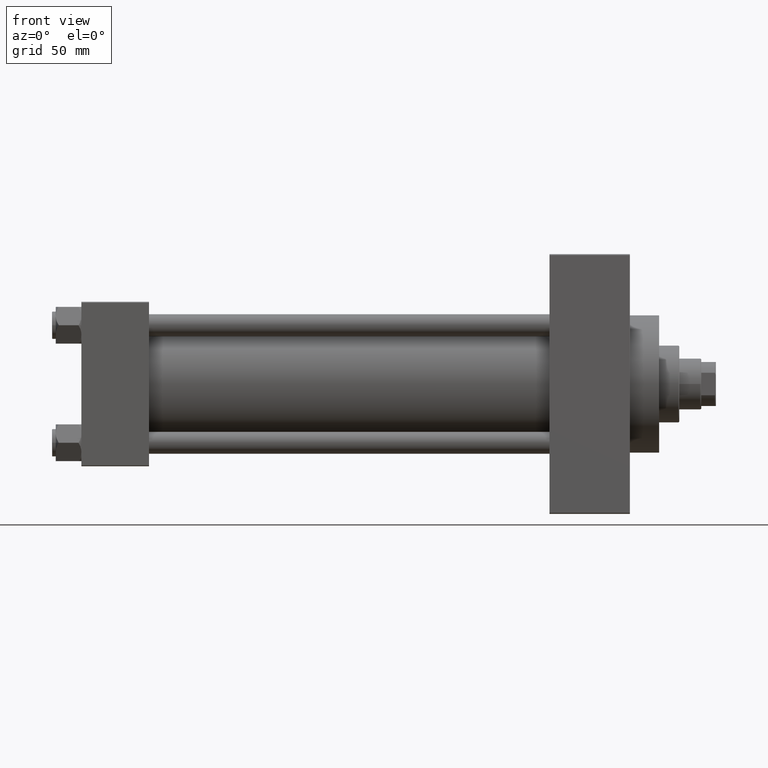
[diagram: clean part render]
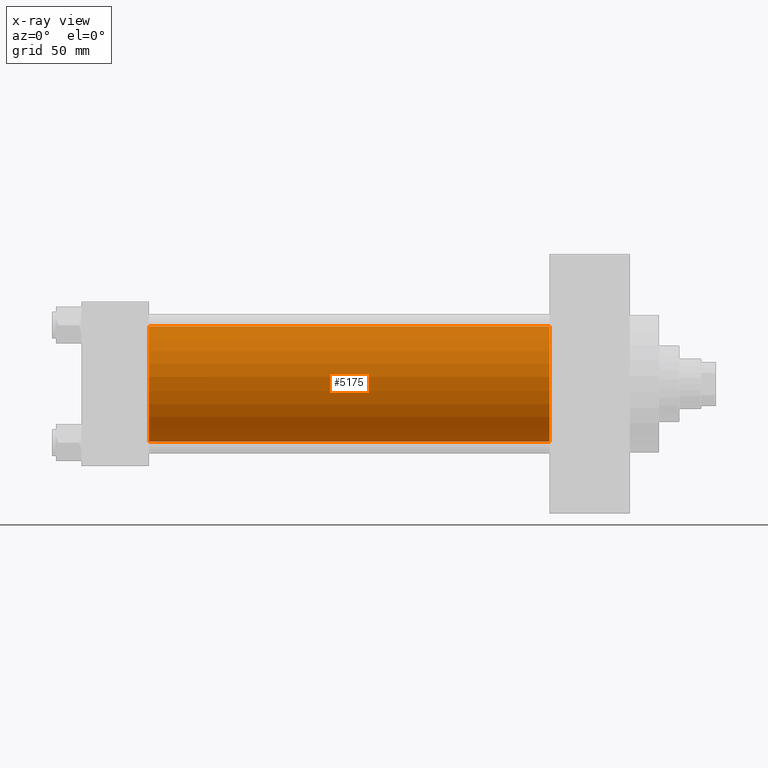
[diagram: x-ray — body ghosted, one internal face saturated and labeled with its STEP entity id]
A machine part, front view, then the same camera in x-ray: the body is ghosted and one INTERNAL B-rep face — a face not visible from any outside direction — is saturated and labeled: STEP entity #5175.
In plain terms, the highlighted cylindrical surface (partial cylindrical patch) has radius 31.5 mm, axis along (-1, -0, -0).
Its self-contained STEP definition (entity closure, byte-faithful):
#606 = VERTEX_POINT ( 'NONE', #35447 ) ;
#5175 = ADVANCED_FACE ( 'NONE', ( #32608 ), #10912, .F. ) ;
#5350 = LINE ( 'NONE', #19903, #35626 ) ;
#8655 = CIRCLE ( 'NONE', #34544, 31.50000000000000000 ) ;
#9507 = DIRECTION ( 'NONE',  ( 0.000000000000000000, 0.000000000000000000, -1.000000000000000000 ) ) ;
#10828 = EDGE_CURVE ( 'NONE', #606, #33582, #5350, .T. ) ;
#10912 = CYLINDRICAL_SURFACE ( 'NONE', #32405, 31.50000000000000000 ) ;
#11619 = DIRECTION ( 'NONE',  ( -1.000000000000000000, -0.000000000000000000, -0.000000000000000000 ) ) ;
#12616 = EDGE_LOOP ( 'NONE', ( #37288, #34775, #20875, #40429 ) ) ;
#14919 = DIRECTION ( 'NONE',  ( 0.000000000000000000, 0.000000000000000000, -1.000000000000000000 ) ) ;
#15208 = CARTESIAN_POINT ( 'NONE',  ( 256.0000000000000000, -2.602085213965210642E-15, 0.000000000000000000 ) ) ;
#15739 = VERTEX_POINT ( 'NONE', #39760 ) ;
#15967 = CARTESIAN_POINT ( 'NONE',  ( 37.00000000000000000, -2.602085213965210642E-15, 31.50000000000000000 ) ) ;
#16604 = EDGE_CURVE ( 'NONE', #33582, #15739, #40381, .T. ) ;
#16911 = CARTESIAN_POINT ( 'NONE',  ( 37.00000000000000000, -2.602085213965210642E-15, 0.000000000000000000 ) ) ;
#18540 = CARTESIAN_POINT ( 'NONE',  ( 256.0000000000000000, 1.255552203348951850E-15, -31.50000000000000000 ) ) ;
#19903 = CARTESIAN_POINT ( 'NONE',  ( 256.0000000000000000, -2.602085213965210642E-15, 31.50000000000000000 ) ) ;
#20875 = ORIENTED_EDGE ( 'NONE', *, *, #16604, .F. ) ;
#21481 = CARTESIAN_POINT ( 'NONE',  ( 256.0000000000000000, 1.255552203348951850E-15, -31.50000000000000000 ) ) ;
#21909 = EDGE_CURVE ( 'NONE', #23716, #15739, #37380, .T. ) ;
#23716 = VERTEX_POINT ( 'NONE', #21481 ) ;
#24521 = DIRECTION ( 'NONE',  ( 1.000000000000000000, 0.000000000000000000, 0.000000000000000000 ) ) ;
#25646 = CARTESIAN_POINT ( 'NONE',  ( 256.0000000000000000, -2.602085213965210642E-15, 0.000000000000000000 ) ) ;
#28874 = EDGE_CURVE ( 'NONE', #606, #23716, #8655, .T. ) ;
#29078 = VECTOR ( 'NONE', #30190, 1000.000000000000000 ) ;
#30190 = DIRECTION ( 'NONE',  ( -1.000000000000000000, -0.000000000000000000, -0.000000000000000000 ) ) ;
#32405 = AXIS2_PLACEMENT_3D ( 'NONE', #15208, #11619, #40482 ) ;
#32608 = FACE_OUTER_BOUND ( 'NONE', #12616, .T. ) ;
#32749 = AXIS2_PLACEMENT_3D ( 'NONE', #16911, #24521, #9507 ) ;
#33582 = VERTEX_POINT ( 'NONE', #15967 ) ;
#34451 = DIRECTION ( 'NONE',  ( -1.000000000000000000, -0.000000000000000000, -0.000000000000000000 ) ) ;
#34544 = AXIS2_PLACEMENT_3D ( 'NONE', #25646, #44502, #14919 ) ;
#34775 = ORIENTED_EDGE ( 'NONE', *, *, #21909, .T. ) ;
#35447 = CARTESIAN_POINT ( 'NONE',  ( 256.0000000000000000, -2.602085213965210642E-15, 31.50000000000000000 ) ) ;
#35626 = VECTOR ( 'NONE', #34451, 1000.000000000000000 ) ;
#37288 = ORIENTED_EDGE ( 'NONE', *, *, #28874, .T. ) ;
#37380 = LINE ( 'NONE', #18540, #29078 ) ;
#39760 = CARTESIAN_POINT ( 'NONE',  ( 37.00000000000000000, 1.255552203348951850E-15, -31.50000000000000000 ) ) ;
#40381 = CIRCLE ( 'NONE', #32749, 31.50000000000000000 ) ;
#40429 = ORIENTED_EDGE ( 'NONE', *, *, #10828, .F. ) ;
#40482 = DIRECTION ( 'NONE',  ( 0.000000000000000000, 0.000000000000000000, 1.000000000000000000 ) ) ;
#44502 = DIRECTION ( 'NONE',  ( 1.000000000000000000, 0.000000000000000000, 0.000000000000000000 ) ) ;